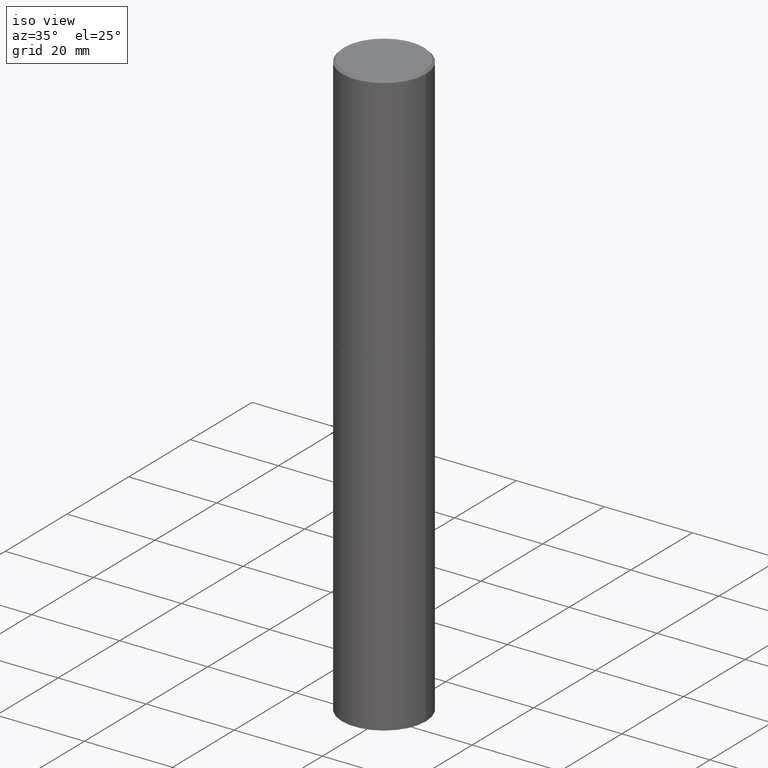
[diagram: clean part render]
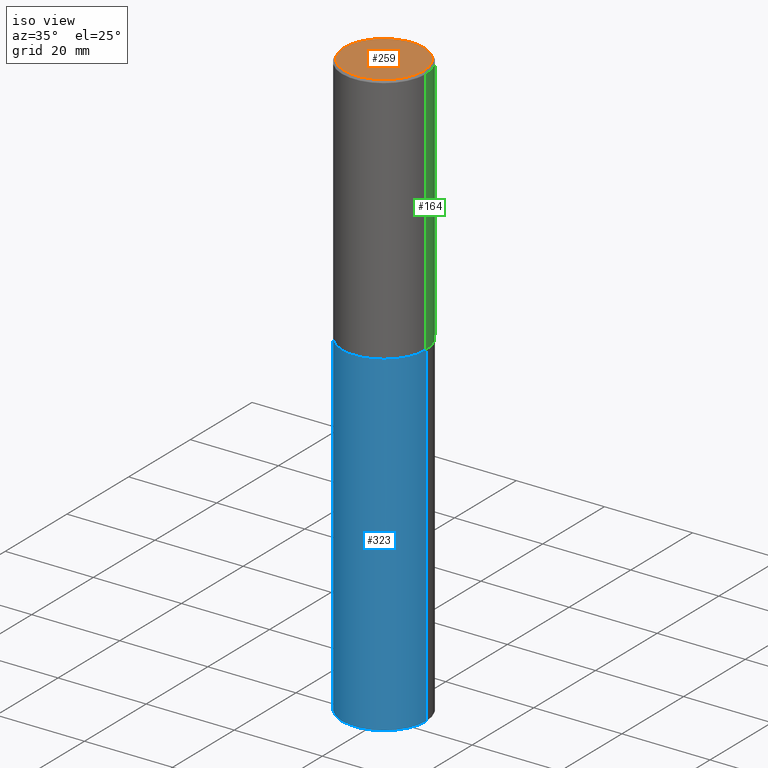
[diagram: same view with three faces highlighted in distinct colors, each labeled with its STEP entity id]
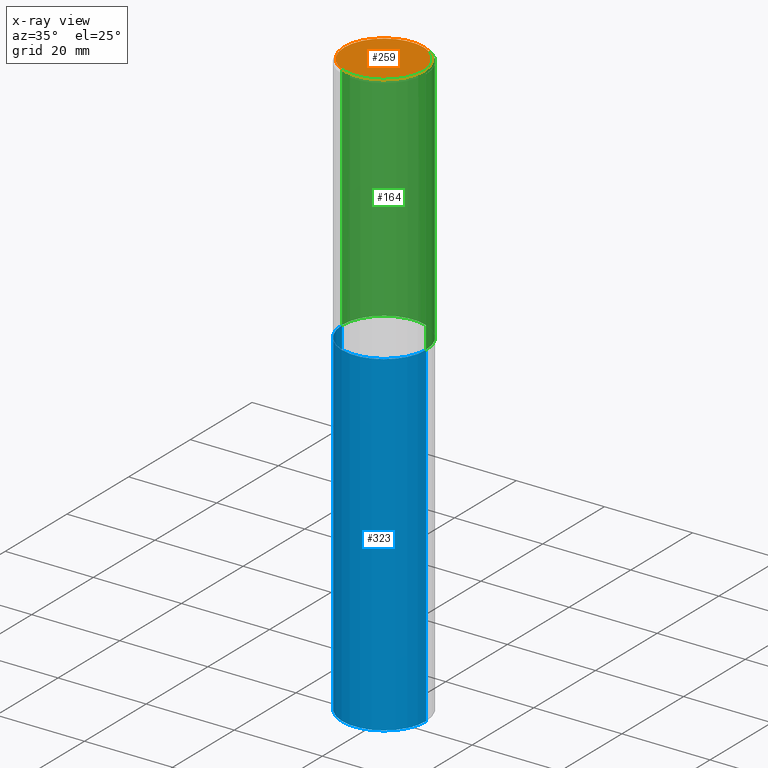
[diagram: x-ray of the same camera — body ghosted, the three highlighted faces saturated]
A machine part, iso view with three faces highlighted in distinct colors.
The next image is the same camera in x-ray (body ghosted, the three faces saturated) — at least one of them is partly hidden behind the body in this view.
Their STEP definitions:

[orange] entity #259 — the highlighted planar face has unit normal (0, -0, -1).
#16 = AXIS2_PLACEMENT_3D ( 'NONE', #240, #211, #20 ) ;
#20 = DIRECTION ( 'NONE',  ( 1.000000000000000000, -6.982962677686266711E-15, 4.876231632511990425E-29 ) ) ;
#23 = CARTESIAN_POINT ( 'NONE',  ( 2.478951750578623420E-15, 0.3549999999999998157, -1.237341619044265835E-15 ) ) ;
#52 = EDGE_LOOP ( 'NONE', ( #251, #79 ) ) ;
#70 = FACE_OUTER_BOUND ( 'NONE', #52, .T. ) ;
#79 = ORIENTED_EDGE ( 'NONE', *, *, #167, .T. ) ;
#109 = VERTEX_POINT ( 'NONE', #312 ) ;
#118 = AXIS2_PLACEMENT_3D ( 'NONE', #23, #265, #181 ) ;
#165 = CIRCLE ( 'NONE', #16, 0.3549999999999998157 ) ;
#167 = EDGE_CURVE ( 'NONE', #180, #109, #289, .T. ) ;
#180 = VERTEX_POINT ( 'NONE', #318 ) ;
#181 = DIRECTION ( 'NONE',  ( -1.000000000000000000, 6.982962677686265922E-15, -4.876176775795935793E-29 ) ) ;
#204 = DIRECTION ( 'NONE',  ( 1.000000000000000000, -6.982962677686266711E-15, 4.876231632511990425E-29 ) ) ;
#211 = DIRECTION ( 'NONE',  ( -2.445468806185136597E-29, 3.491481338843145583E-15, 1.000000000000000000 ) ) ;
#240 = CARTESIAN_POINT ( 'NONE',  ( -1.043851414335219820E-46, 1.490343170380447200E-32, 4.268512490100411279E-18 ) ) ;
#251 = ORIENTED_EDGE ( 'NONE', *, *, #274, .T. ) ;
#259 = ADVANCED_FACE ( 'NONE', ( #70 ), #297, .F. ) ;
#265 = DIRECTION ( 'NONE',  ( 2.438088387897960049E-29, -3.491481338843145188E-15, -1.000000000000000000 ) ) ;
#267 = CARTESIAN_POINT ( 'NONE',  ( -1.043851414335219820E-46, 1.490343170380447200E-32, 4.268512490100411279E-18 ) ) ;
#270 = DIRECTION ( 'NONE',  ( -2.445468806185136597E-29, 3.491481338843145583E-15, 1.000000000000000000 ) ) ;
#274 = EDGE_CURVE ( 'NONE', #109, #180, #165, .T. ) ;
#289 = CIRCLE ( 'NONE', #325, 0.3549999999999998157 ) ;
#297 = PLANE ( 'NONE',  #118 ) ;
#312 = CARTESIAN_POINT ( 'NONE',  ( -0.3549999999999998157, 2.513866563967054675E-15, 4.268512490082953109E-18 ) ) ;
#318 = CARTESIAN_POINT ( 'NONE',  ( 0.3549999999999998157, -2.538996582575039470E-15, 4.268512490117958041E-18 ) ) ;
#325 = AXIS2_PLACEMENT_3D ( 'NONE', #267, #270, #204 ) ;

[blue] entity #323 — the highlighted cylindrical surface (partial cylindrical patch) has radius 9.525 mm, axis along (-0, 0, 1).
#15 = ORIENTED_EDGE ( 'NONE', *, *, #183, .T. ) ;
#30 = EDGE_CURVE ( 'NONE', #155, #107, #341, .T. ) ;
#50 = FACE_OUTER_BOUND ( 'NONE', #319, .T. ) ;
#65 = LINE ( 'NONE', #174, #237 ) ;
#86 = VERTEX_POINT ( 'NONE', #336 ) ;
#95 = AXIS2_PLACEMENT_3D ( 'NONE', #97, #280, #257 ) ;
#96 = EDGE_CURVE ( 'NONE', #264, #86, #256, .T. ) ;
#97 = CARTESIAN_POINT ( 'NONE',  ( 5.502304813916557343E-29, -7.855833012397078448E-15, -2.250000000000000000 ) ) ;
#106 = CYLINDRICAL_SURFACE ( 'NONE', #225, 0.3750000000000000555 ) ;
#107 = VERTEX_POINT ( 'NONE', #202 ) ;
#111 = ORIENTED_EDGE ( 'NONE', *, *, #96, .T. ) ;
#112 = EDGE_CURVE ( 'NONE', #264, #155, #65, .T. ) ;
#126 = CARTESIAN_POINT ( 'NONE',  ( -0.3750000000000000555, -1.042851976156142014E-14, -2.250000000000000000 ) ) ;
#134 = CARTESIAN_POINT ( 'NONE',  ( -0.3750000000000000555, -1.042851976156142014E-14, -5.250000000000000000 ) ) ;
#136 = LINE ( 'NONE', #209, #349 ) ;
#155 = VERTEX_POINT ( 'NONE', #126 ) ;
#162 = DIRECTION ( 'NONE',  ( -2.445468806185136877E-29, 3.491481338843145188E-15, 1.000000000000000000 ) ) ;
#171 = DIRECTION ( 'NONE',  ( -2.445468806185136597E-29, 3.491481338843145583E-15, 1.000000000000000000 ) ) ;
#174 = CARTESIAN_POINT ( 'NONE',  ( -0.3750000000000000555, 2.664535259100376091E-15, -1.844600658845589598E-29 ) ) ;
#183 = EDGE_CURVE ( 'NONE', #86, #107, #136, .T. ) ;
#197 = CARTESIAN_POINT ( 'NONE',  ( 1.283871123247196713E-28, -1.833027702892651322E-14, -5.250000000000000000 ) ) ;
#202 = CARTESIAN_POINT ( 'NONE',  ( 0.3750000000000000555, -1.047444401652942689E-14, -2.250000000000000000 ) ) ;
#208 = DIRECTION ( 'NONE',  ( 1.000000000000000000, -6.982962677686265922E-15, 4.876176775795935793E-29 ) ) ;
#209 = CARTESIAN_POINT ( 'NONE',  ( 0.3750000000000000555, -2.618611004132350016E-15, 1.828566290923476203E-29 ) ) ;
#221 = AXIS2_PLACEMENT_3D ( 'NONE', #197, #171, #337 ) ;
#225 = AXIS2_PLACEMENT_3D ( 'NONE', #242, #324, #208 ) ;
#237 = VECTOR ( 'NONE', #287, 39.37007874015748143 ) ;
#239 = ORIENTED_EDGE ( 'NONE', *, *, #112, .F. ) ;
#242 = CARTESIAN_POINT ( 'NONE',  ( 0.000000000000000000, 0.000000000000000000, 0.000000000000000000 ) ) ;
#256 = CIRCLE ( 'NONE', #221, 0.3750000000000000555 ) ;
#257 = DIRECTION ( 'NONE',  ( 1.000000000000000000, -6.982962677686264344E-15, 0.000000000000000000 ) ) ;
#264 = VERTEX_POINT ( 'NONE', #134 ) ;
#280 = DIRECTION ( 'NONE',  ( -2.445468806185136597E-29, 3.491481338843145583E-15, 1.000000000000000000 ) ) ;
#287 = DIRECTION ( 'NONE',  ( -2.445468806185136877E-29, 3.491481338843145188E-15, 1.000000000000000000 ) ) ;
#319 = EDGE_LOOP ( 'NONE', ( #239, #111, #15, #365 ) ) ;
#323 = ADVANCED_FACE ( 'NONE', ( #50 ), #106, .T. ) ;
#324 = DIRECTION ( 'NONE',  ( -2.445468806185136597E-29, 3.491481338843145583E-15, 1.000000000000000000 ) ) ;
#336 = CARTESIAN_POINT ( 'NONE',  ( 0.3750000000000000555, -2.094888803305886324E-14, -5.250000000000000000 ) ) ;
#337 = DIRECTION ( 'NONE',  ( 1.000000000000000000, -6.982962677686261189E-15, 0.000000000000000000 ) ) ;
#341 = CIRCLE ( 'NONE', #95, 0.3750000000000000555 ) ;
#349 = VECTOR ( 'NONE', #162, 39.37007874015748143 ) ;
#365 = ORIENTED_EDGE ( 'NONE', *, *, #30, .F. ) ;

[green] entity #164 — the highlighted cylindrical surface (partial cylindrical patch) has radius 9.525 mm, axis along (-0, 0, 1).
#6 = DIRECTION ( 'NONE',  ( -2.445468806185136877E-29, 3.491481338843145188E-15, 1.000000000000000000 ) ) ;
#13 = VERTEX_POINT ( 'NONE', #192 ) ;
#17 = EDGE_CURVE ( 'NONE', #29, #13, #43, .T. ) ;
#18 = CARTESIAN_POINT ( 'NONE',  ( 4.890937612370293302E-31, -6.982962677686318726E-17, -0.02000000000000008021 ) ) ;
#29 = VERTEX_POINT ( 'NONE', #169 ) ;
#37 = CARTESIAN_POINT ( 'NONE',  ( 5.499859345110371740E-29, -7.852341531058233864E-15, -2.249000000000000110 ) ) ;
#43 = LINE ( 'NONE', #153, #158 ) ;
#51 = DIRECTION ( 'NONE',  ( 1.000000000000000000, -6.982962677686265922E-15, 0.000000000000000000 ) ) ;
#55 = VECTOR ( 'NONE', #6, 39.37007874015748143 ) ;
#58 = AXIS2_PLACEMENT_3D ( 'NONE', #37, #150, #151 ) ;
#74 = DIRECTION ( 'NONE',  ( -2.445468806185136597E-29, 3.491481338843145583E-15, 1.000000000000000000 ) ) ;
#80 = EDGE_CURVE ( 'NONE', #360, #303, #345, .T. ) ;
#123 = EDGE_CURVE ( 'NONE', #360, #29, #147, .T. ) ;
#130 = ORIENTED_EDGE ( 'NONE', *, *, #123, .T. ) ;
#147 = CIRCLE ( 'NONE', #58, 0.3750000000000001110 ) ;
#150 = DIRECTION ( 'NONE',  ( -2.445468806185136597E-29, 3.491481338843145583E-15, 1.000000000000000000 ) ) ;
#151 = DIRECTION ( 'NONE',  ( 1.000000000000000000, -6.982962677686265922E-15, 0.000000000000000000 ) ) ;
#153 = CARTESIAN_POINT ( 'NONE',  ( -0.3749999999999999445, 2.664535259100375303E-15, -1.844600658845589318E-29 ) ) ;
#158 = VECTOR ( 'NONE', #277, 39.37007874015748143 ) ;
#161 = CARTESIAN_POINT ( 'NONE',  ( 0.000000000000000000, 0.000000000000000000, 0.000000000000000000 ) ) ;
#164 = ADVANCED_FACE ( 'NONE', ( #176 ), #347, .T. ) ;
#166 = CARTESIAN_POINT ( 'NONE',  ( 0.3750000000000001110, -1.047095253519058546E-14, -2.249000000000000110 ) ) ;
#169 = CARTESIAN_POINT ( 'NONE',  ( -0.3750000000000001110, -1.296550319817170517E-15, -2.249000000000000110 ) ) ;
#176 = FACE_OUTER_BOUND ( 'NONE', #353, .T. ) ;
#192 = CARTESIAN_POINT ( 'NONE',  ( -0.3749999999999998335, 2.548781377355485141E-15, -0.02000000000000008021 ) ) ;
#215 = EDGE_CURVE ( 'NONE', #303, #13, #308, .T. ) ;
#238 = DIRECTION ( 'NONE',  ( 1.000000000000000000, -6.982962677686266711E-15, 4.876176775795935793E-29 ) ) ;
#249 = ORIENTED_EDGE ( 'NONE', *, *, #17, .T. ) ;
#263 = DIRECTION ( 'NONE',  ( -2.445468806185136597E-29, 3.491481338843145583E-15, 1.000000000000000000 ) ) ;
#276 = AXIS2_PLACEMENT_3D ( 'NONE', #161, #74, #238 ) ;
#277 = DIRECTION ( 'NONE',  ( -2.445468806185136877E-29, 3.491481338843145188E-15, 1.000000000000000000 ) ) ;
#303 = VERTEX_POINT ( 'NONE', #350 ) ;
#308 = CIRCLE ( 'NONE', #358, 0.3749999999999998335 ) ;
#332 = ORIENTED_EDGE ( 'NONE', *, *, #80, .F. ) ;
#343 = CARTESIAN_POINT ( 'NONE',  ( 0.3749999999999999445, -2.618611004132349622E-15, 1.828566290923475642E-29 ) ) ;
#345 = LINE ( 'NONE', #343, #55 ) ;
#347 = CYLINDRICAL_SURFACE ( 'NONE', #276, 0.3749999999999999445 ) ;
#350 = CARTESIAN_POINT ( 'NONE',  ( 0.3749999999999998335, -2.642516375941186451E-15, -0.02000000000000008021 ) ) ;
#351 = ORIENTED_EDGE ( 'NONE', *, *, #215, .F. ) ;
#353 = EDGE_LOOP ( 'NONE', ( #130, #249, #351, #332 ) ) ;
#358 = AXIS2_PLACEMENT_3D ( 'NONE', #18, #263, #51 ) ;
#360 = VERTEX_POINT ( 'NONE', #166 ) ;